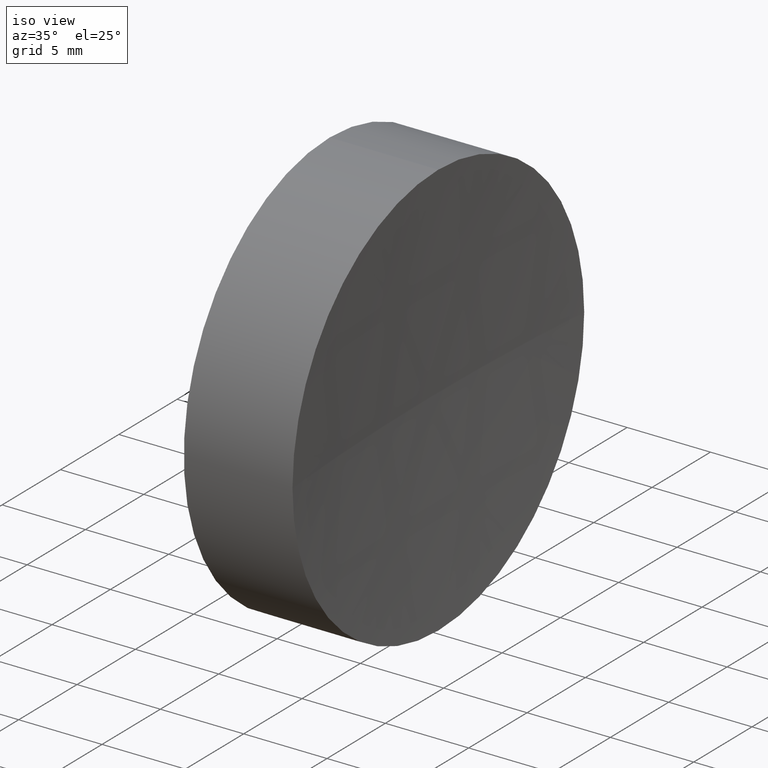
[diagram: clean part render]
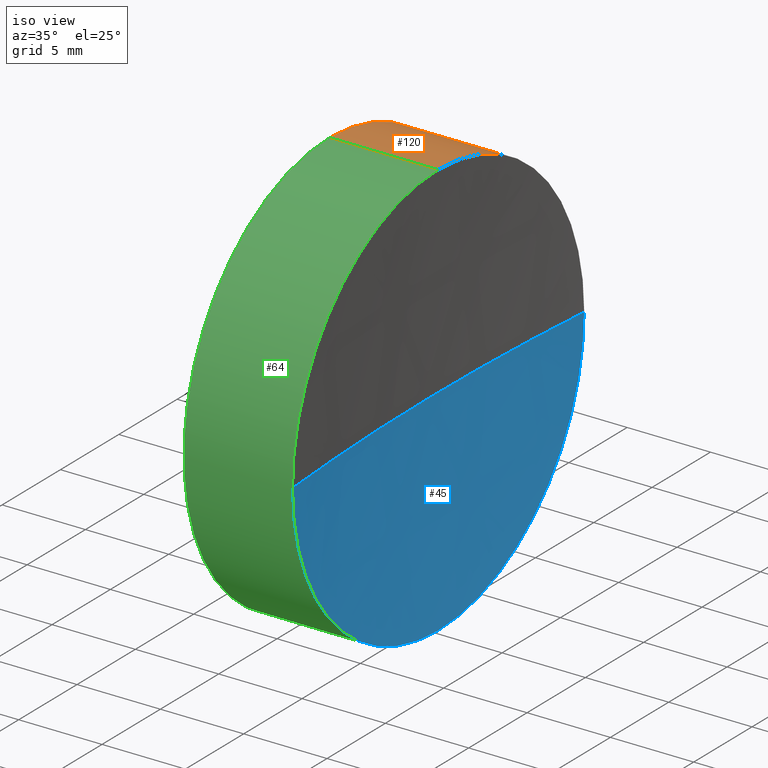
[diagram: same view with three faces highlighted in distinct colors, each labeled with its STEP entity id]
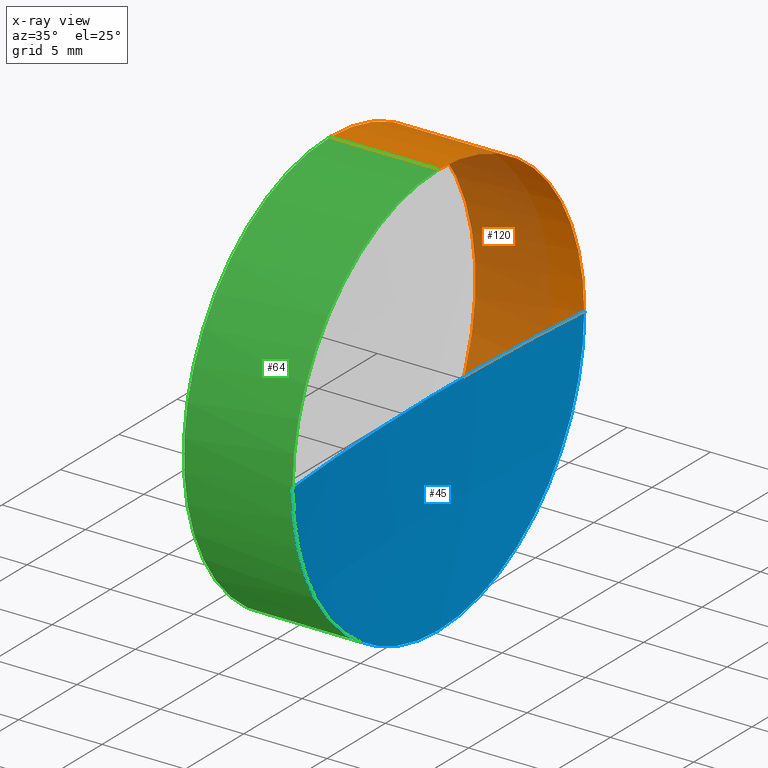
[diagram: x-ray of the same camera — body ghosted, the three highlighted faces saturated]
A machine part, iso view with three faces highlighted in distinct colors.
The next image is the same camera in x-ray (body ghosted, the three faces saturated) — at least one of them is partly hidden behind the body in this view.
Their STEP definitions:

[orange] entity #120 — the highlighted cylindrical surface (partial cylindrical patch) has radius 12.5 mm, axis along (-1, -0, -0).
#2 = LINE ( 'NONE', #5, #108 ) ;
#3 = DIRECTION ( 'NONE',  ( 0.0000000000000000000, 0.0000000000000000000, 1.000000000000000000 ) ) ;
#4 = CARTESIAN_POINT ( 'NONE',  ( 121.6143964708713000, 69.37802112337243400, 12.50000000000002500 ) ) ;
#5 = CARTESIAN_POINT ( 'NONE',  ( 108.9851430021651000, 69.37802112337243400, -12.50000000000001100 ) ) ;
#6 = DIRECTION ( 'NONE',  ( -1.000000000000000000, -0.0000000000000000000, -0.0000000000000000000 ) ) ;
#13 = DIRECTION ( 'NONE',  ( -1.000000000000000000, -0.0000000000000000000, -0.0000000000000000000 ) ) ;
#14 = DIRECTION ( 'NONE',  ( 0.0000000000000000000, 0.0000000000000000000, 1.000000000000000000 ) ) ;
#15 = EDGE_LOOP ( 'NONE', ( #123, #28, #49, #180, #177 ) ) ;
#18 = VERTEX_POINT ( 'NONE', #50 ) ;
#28 = ORIENTED_EDGE ( 'NONE', *, *, #157, .T. ) ;
#29 = CARTESIAN_POINT ( 'NONE',  ( 121.6143964708713000, 69.37802112337243400, 0.0000000000000000000 ) ) ;
#31 = DIRECTION ( 'NONE',  ( -1.000000000000000000, -0.0000000000000000000, -0.0000000000000000000 ) ) ;
#37 = VECTOR ( 'NONE', #6, 1000.000000000000000 ) ;
#39 = AXIS2_PLACEMENT_3D ( 'NONE', #186, #138, #3 ) ;
#42 = CARTESIAN_POINT ( 'NONE',  ( 108.9851430021651000, 69.37802112337243400, 12.50000000000001100 ) ) ;
#44 = DIRECTION ( 'NONE',  ( -1.000000000000000000, -0.0000000000000000000, -0.0000000000000000000 ) ) ;
#49 = ORIENTED_EDGE ( 'NONE', *, *, #67, .F. ) ;
#50 = CARTESIAN_POINT ( 'NONE',  ( 121.6143964708713000, 69.37802112337243400, -12.50000000000002500 ) ) ;
#60 = AXIS2_PLACEMENT_3D ( 'NONE', #101, #44, #14 ) ;
#63 = VERTEX_POINT ( 'NONE', #119 ) ;
#67 = EDGE_CURVE ( 'NONE', #63, #84, #106, .T. ) ;
#70 = DIRECTION ( 'NONE',  ( 0.0000000000000000000, 0.0000000000000000000, 1.000000000000000000 ) ) ;
#76 = CIRCLE ( 'NONE', #77, 12.50000000000002500 ) ;
#77 = AXIS2_PLACEMENT_3D ( 'NONE', #29, #87, #70 ) ;
#84 = VERTEX_POINT ( 'NONE', #179 ) ;
#85 = CYLINDRICAL_SURFACE ( 'NONE', #154, 12.50000000000001100 ) ;
#86 = CARTESIAN_POINT ( 'NONE',  ( 121.6143964708713000, 81.87802112337256200, 1.530808498934198600E-015 ) ) ;
#87 = DIRECTION ( 'NONE',  ( -1.000000000000000000, -0.0000000000000000000, -0.0000000000000000000 ) ) ;
#92 = VERTEX_POINT ( 'NONE', #86 ) ;
#101 = CARTESIAN_POINT ( 'NONE',  ( 121.6143964708713000, 69.37802112337243400, 0.0000000000000000000 ) ) ;
#106 = CIRCLE ( 'NONE', #39, 12.49999999999999600 ) ;
#108 = VECTOR ( 'NONE', #13, 1000.000000000000000 ) ;
#119 = CARTESIAN_POINT ( 'NONE',  ( 115.0926555349195200, 69.37802112337243400, 12.49999999999999600 ) ) ;
#120 = ADVANCED_FACE ( 'NONE', ( #156 ), #85, .T. ) ;
#122 = VERTEX_POINT ( 'NONE', #4 ) ;
#123 = ORIENTED_EDGE ( 'NONE', *, *, #176, .T. ) ;
#124 = DIRECTION ( 'NONE',  ( 0.0000000000000000000, 0.0000000000000000000, 1.000000000000000000 ) ) ;
#138 = DIRECTION ( 'NONE',  ( -1.000000000000000000, -0.0000000000000000000, -0.0000000000000000000 ) ) ;
#145 = CIRCLE ( 'NONE', #60, 12.50000000000002500 ) ;
#146 = EDGE_CURVE ( 'NONE', #122, #92, #76, .T. ) ;
#151 = LINE ( 'NONE', #42, #37 ) ;
#154 = AXIS2_PLACEMENT_3D ( 'NONE', #159, #31, #124 ) ;
#156 = FACE_OUTER_BOUND ( 'NONE', #15, .T. ) ;
#157 = EDGE_CURVE ( 'NONE', #18, #84, #2, .T. ) ;
#159 = CARTESIAN_POINT ( 'NONE',  ( 108.9851430021651000, 69.37802112337243400, 0.0000000000000000000 ) ) ;
#176 = EDGE_CURVE ( 'NONE', #92, #18, #145, .T. ) ;
#177 = ORIENTED_EDGE ( 'NONE', *, *, #146, .T. ) ;
#179 = CARTESIAN_POINT ( 'NONE',  ( 115.0926555349195200, 69.37802112337243400, -12.49999999999999600 ) ) ;
#180 = ORIENTED_EDGE ( 'NONE', *, *, #184, .F. ) ;
#184 = EDGE_CURVE ( 'NONE', #122, #63, #151, .T. ) ;
#186 = CARTESIAN_POINT ( 'NONE',  ( 115.0926555349195200, 69.37802112337243400, 0.0000000000000000000 ) ) ;

[blue] entity #45 — the highlighted spherical surface has radius 150 mm.
#8 = AXIS2_PLACEMENT_3D ( 'NONE', #107, #171, #94 ) ;
#14 = DIRECTION ( 'NONE',  ( 0.0000000000000000000, 0.0000000000000000000, 1.000000000000000000 ) ) ;
#18 = VERTEX_POINT ( 'NONE', #50 ) ;
#19 = VERTEX_POINT ( 'NONE', #24 ) ;
#20 = CARTESIAN_POINT ( 'NONE',  ( 271.0926557596387700, 69.37802112337249100, 0.0000000000000000000 ) ) ;
#24 = CARTESIAN_POINT ( 'NONE',  ( 121.6143964708713000, 56.87802112337238500, 0.0000000000000000000 ) ) ;
#26 = SPHERICAL_SURFACE ( 'NONE', #34, 150.0000000000000000 ) ;
#32 = DIRECTION ( 'NONE',  ( 0.0000000000000000000, -1.224646799147353200E-016, 1.000000000000000000 ) ) ;
#34 = AXIS2_PLACEMENT_3D ( 'NONE', #20, #35, #169 ) ;
#35 = DIRECTION ( 'NONE',  ( 0.0000000000000000000, 0.0000000000000000000, 1.000000000000000000 ) ) ;
#40 = EDGE_CURVE ( 'NONE', #19, #93, #183, .T. ) ;
#41 = CARTESIAN_POINT ( 'NONE',  ( 121.6143964708713000, 69.37802112337243400, 0.0000000000000000000 ) ) ;
#43 = DIRECTION ( 'NONE',  ( 0.0000000000000000000, 0.0000000000000000000, 1.000000000000000000 ) ) ;
#44 = DIRECTION ( 'NONE',  ( -1.000000000000000000, -0.0000000000000000000, -0.0000000000000000000 ) ) ;
#45 = ADVANCED_FACE ( 'NONE', ( #135 ), #26, .F. ) ;
#47 = CIRCLE ( 'NONE', #167, 12.50000000000002500 ) ;
#50 = CARTESIAN_POINT ( 'NONE',  ( 121.6143964708713000, 69.37802112337243400, -12.50000000000002500 ) ) ;
#51 = EDGE_LOOP ( 'NONE', ( #128, #173, #136, #58 ) ) ;
#53 = CARTESIAN_POINT ( 'NONE',  ( 121.0926557596387600, 69.37802112337247700, 0.0000000000000000000 ) ) ;
#54 = DIRECTION ( 'NONE',  ( 0.0000000000000000000, -1.000000000000000000, -1.224646799147353200E-016 ) ) ;
#58 = ORIENTED_EDGE ( 'NONE', *, *, #165, .F. ) ;
#60 = AXIS2_PLACEMENT_3D ( 'NONE', #101, #44, #14 ) ;
#86 = CARTESIAN_POINT ( 'NONE',  ( 121.6143964708713000, 81.87802112337256200, 1.530808498934198600E-015 ) ) ;
#92 = VERTEX_POINT ( 'NONE', #86 ) ;
#93 = VERTEX_POINT ( 'NONE', #53 ) ;
#94 = DIRECTION ( 'NONE',  ( -1.000000000000000000, 0.0000000000000000000, 0.0000000000000000000 ) ) ;
#101 = CARTESIAN_POINT ( 'NONE',  ( 121.6143964708713000, 69.37802112337243400, 0.0000000000000000000 ) ) ;
#107 = CARTESIAN_POINT ( 'NONE',  ( 271.0926557596387700, 69.37802112337249100, 0.0000000000000000000 ) ) ;
#113 = CARTESIAN_POINT ( 'NONE',  ( 271.0926557596387700, 69.37802112337249100, 0.0000000000000000000 ) ) ;
#116 = CIRCLE ( 'NONE', #152, 150.0000000000000000 ) ;
#128 = ORIENTED_EDGE ( 'NONE', *, *, #176, .F. ) ;
#135 = FACE_OUTER_BOUND ( 'NONE', #51, .T. ) ;
#136 = ORIENTED_EDGE ( 'NONE', *, *, #40, .F. ) ;
#140 = DIRECTION ( 'NONE',  ( -1.000000000000000000, -0.0000000000000000000, -0.0000000000000000000 ) ) ;
#145 = CIRCLE ( 'NONE', #60, 12.50000000000002500 ) ;
#152 = AXIS2_PLACEMENT_3D ( 'NONE', #113, #32, #54 ) ;
#158 = EDGE_CURVE ( 'NONE', #92, #93, #116, .T. ) ;
#165 = EDGE_CURVE ( 'NONE', #18, #19, #47, .T. ) ;
#167 = AXIS2_PLACEMENT_3D ( 'NONE', #41, #140, #43 ) ;
#169 = DIRECTION ( 'NONE',  ( 0.0000000000000000000, -1.000000000000000000, 0.0000000000000000000 ) ) ;
#171 = DIRECTION ( 'NONE',  ( 0.0000000000000000000, 0.0000000000000000000, -1.000000000000000000 ) ) ;
#173 = ORIENTED_EDGE ( 'NONE', *, *, #158, .T. ) ;
#176 = EDGE_CURVE ( 'NONE', #92, #18, #145, .T. ) ;
#183 = CIRCLE ( 'NONE', #8, 150.0000000000000000 ) ;

[green] entity #64 — the highlighted cylindrical surface (partial cylindrical patch) has radius 12.5 mm, axis along (-1, -0, -0).
#2 = LINE ( 'NONE', #5, #108 ) ;
#4 = CARTESIAN_POINT ( 'NONE',  ( 121.6143964708713000, 69.37802112337243400, 12.50000000000002500 ) ) ;
#5 = CARTESIAN_POINT ( 'NONE',  ( 108.9851430021651000, 69.37802112337243400, -12.50000000000001100 ) ) ;
#6 = DIRECTION ( 'NONE',  ( -1.000000000000000000, -0.0000000000000000000, -0.0000000000000000000 ) ) ;
#7 = CIRCLE ( 'NONE', #74, 12.49999999999999600 ) ;
#10 = CARTESIAN_POINT ( 'NONE',  ( 121.6143964708713000, 69.37802112337243400, 0.0000000000000000000 ) ) ;
#13 = DIRECTION ( 'NONE',  ( -1.000000000000000000, -0.0000000000000000000, -0.0000000000000000000 ) ) ;
#18 = VERTEX_POINT ( 'NONE', #50 ) ;
#19 = VERTEX_POINT ( 'NONE', #24 ) ;
#24 = CARTESIAN_POINT ( 'NONE',  ( 121.6143964708713000, 56.87802112337238500, 0.0000000000000000000 ) ) ;
#30 = DIRECTION ( 'NONE',  ( 0.0000000000000000000, 0.0000000000000000000, 1.000000000000000000 ) ) ;
#37 = VECTOR ( 'NONE', #6, 1000.000000000000000 ) ;
#41 = CARTESIAN_POINT ( 'NONE',  ( 121.6143964708713000, 69.37802112337243400, 0.0000000000000000000 ) ) ;
#42 = CARTESIAN_POINT ( 'NONE',  ( 108.9851430021651000, 69.37802112337243400, 12.50000000000001100 ) ) ;
#43 = DIRECTION ( 'NONE',  ( 0.0000000000000000000, 0.0000000000000000000, 1.000000000000000000 ) ) ;
#47 = CIRCLE ( 'NONE', #167, 12.50000000000002500 ) ;
#50 = CARTESIAN_POINT ( 'NONE',  ( 121.6143964708713000, 69.37802112337243400, -12.50000000000002500 ) ) ;
#55 = ORIENTED_EDGE ( 'NONE', *, *, #157, .F. ) ;
#59 = AXIS2_PLACEMENT_3D ( 'NONE', #150, #134, #62 ) ;
#62 = DIRECTION ( 'NONE',  ( 0.0000000000000000000, 0.0000000000000000000, 1.000000000000000000 ) ) ;
#63 = VERTEX_POINT ( 'NONE', #119 ) ;
#64 = ADVANCED_FACE ( 'NONE', ( #125 ), #97, .T. ) ;
#65 = ORIENTED_EDGE ( 'NONE', *, *, #165, .T. ) ;
#74 = AXIS2_PLACEMENT_3D ( 'NONE', #88, #141, #126 ) ;
#79 = DIRECTION ( 'NONE',  ( -1.000000000000000000, -0.0000000000000000000, -0.0000000000000000000 ) ) ;
#80 = CIRCLE ( 'NONE', #117, 12.50000000000002500 ) ;
#84 = VERTEX_POINT ( 'NONE', #179 ) ;
#88 = CARTESIAN_POINT ( 'NONE',  ( 115.0926555349195200, 69.37802112337243400, 0.0000000000000000000 ) ) ;
#96 = ORIENTED_EDGE ( 'NONE', *, *, #174, .F. ) ;
#97 = CYLINDRICAL_SURFACE ( 'NONE', #59, 12.50000000000001100 ) ;
#108 = VECTOR ( 'NONE', #13, 1000.000000000000000 ) ;
#117 = AXIS2_PLACEMENT_3D ( 'NONE', #10, #79, #30 ) ;
#118 = EDGE_LOOP ( 'NONE', ( #55, #65, #130, #164, #96 ) ) ;
#119 = CARTESIAN_POINT ( 'NONE',  ( 115.0926555349195200, 69.37802112337243400, 12.49999999999999600 ) ) ;
#122 = VERTEX_POINT ( 'NONE', #4 ) ;
#125 = FACE_OUTER_BOUND ( 'NONE', #118, .T. ) ;
#126 = DIRECTION ( 'NONE',  ( 0.0000000000000000000, 0.0000000000000000000, 1.000000000000000000 ) ) ;
#130 = ORIENTED_EDGE ( 'NONE', *, *, #172, .T. ) ;
#134 = DIRECTION ( 'NONE',  ( -1.000000000000000000, -0.0000000000000000000, -0.0000000000000000000 ) ) ;
#140 = DIRECTION ( 'NONE',  ( -1.000000000000000000, -0.0000000000000000000, -0.0000000000000000000 ) ) ;
#141 = DIRECTION ( 'NONE',  ( -1.000000000000000000, -0.0000000000000000000, -0.0000000000000000000 ) ) ;
#150 = CARTESIAN_POINT ( 'NONE',  ( 108.9851430021651000, 69.37802112337243400, 0.0000000000000000000 ) ) ;
#151 = LINE ( 'NONE', #42, #37 ) ;
#157 = EDGE_CURVE ( 'NONE', #18, #84, #2, .T. ) ;
#164 = ORIENTED_EDGE ( 'NONE', *, *, #184, .T. ) ;
#165 = EDGE_CURVE ( 'NONE', #18, #19, #47, .T. ) ;
#167 = AXIS2_PLACEMENT_3D ( 'NONE', #41, #140, #43 ) ;
#172 = EDGE_CURVE ( 'NONE', #19, #122, #80, .T. ) ;
#174 = EDGE_CURVE ( 'NONE', #84, #63, #7, .T. ) ;
#179 = CARTESIAN_POINT ( 'NONE',  ( 115.0926555349195200, 69.37802112337243400, -12.49999999999999600 ) ) ;
#184 = EDGE_CURVE ( 'NONE', #122, #63, #151, .T. ) ;